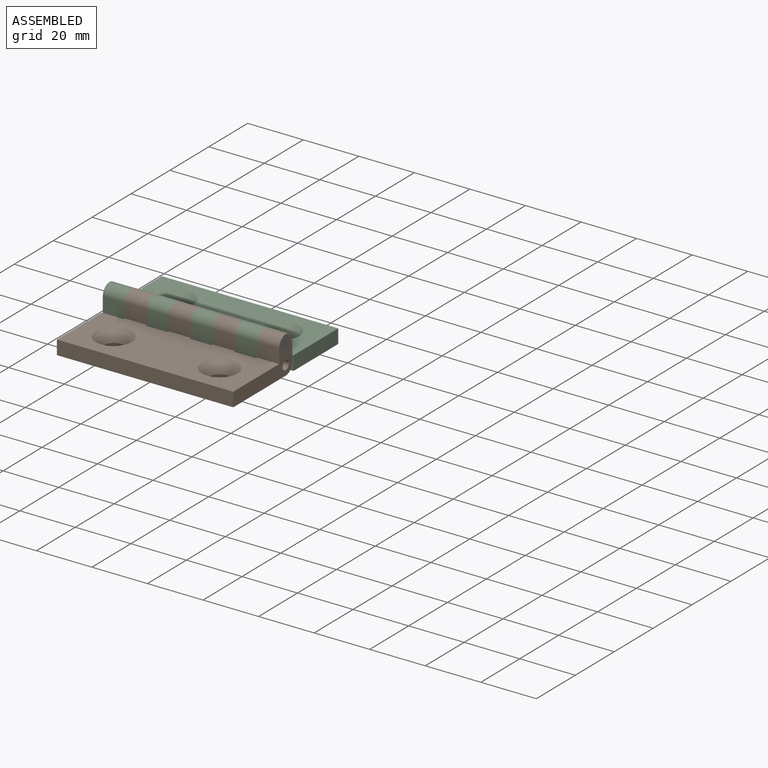
[diagram: assembled view]
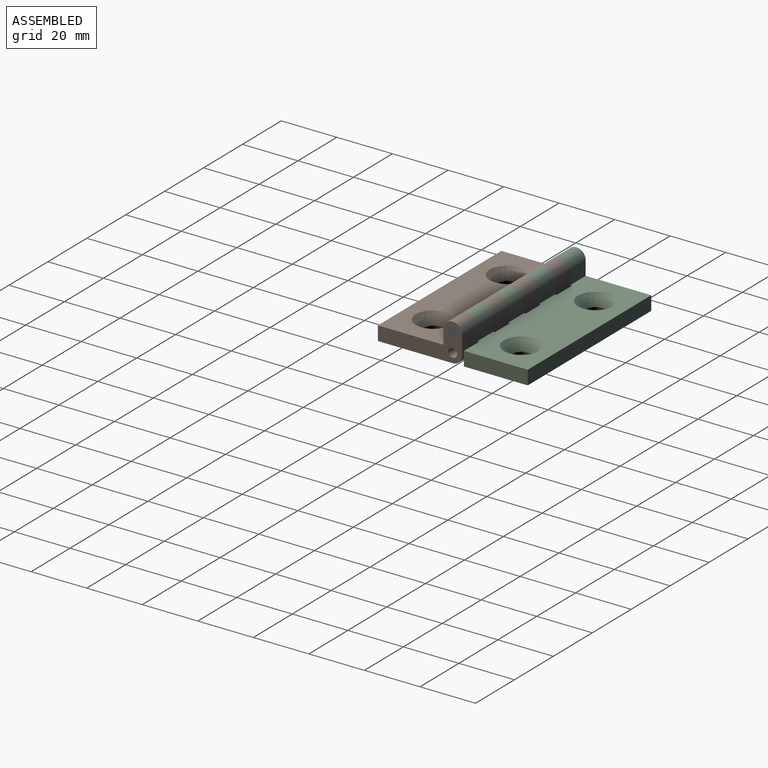
[diagram: assembled view, second angle]
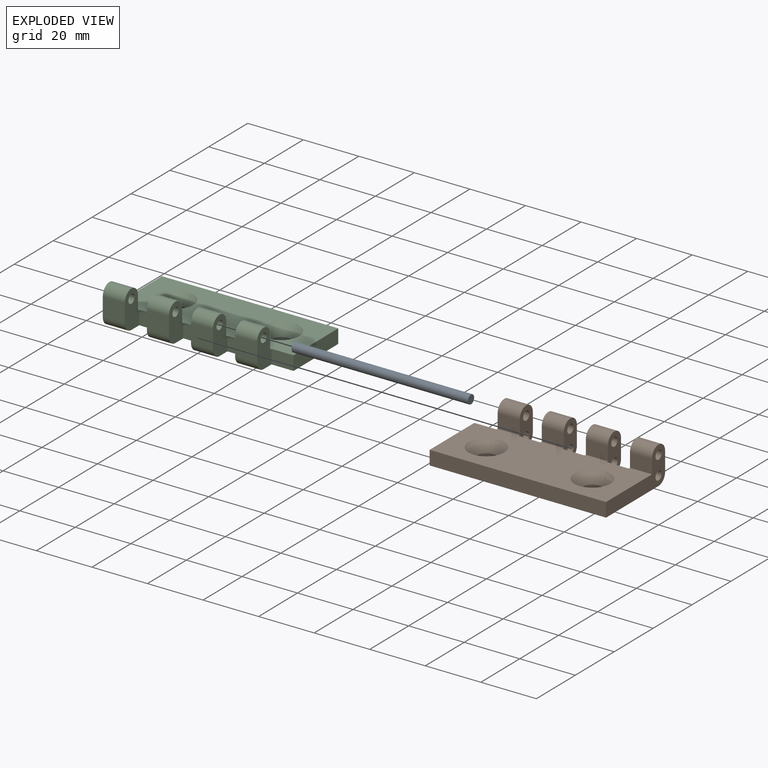
[diagram: exploded view]
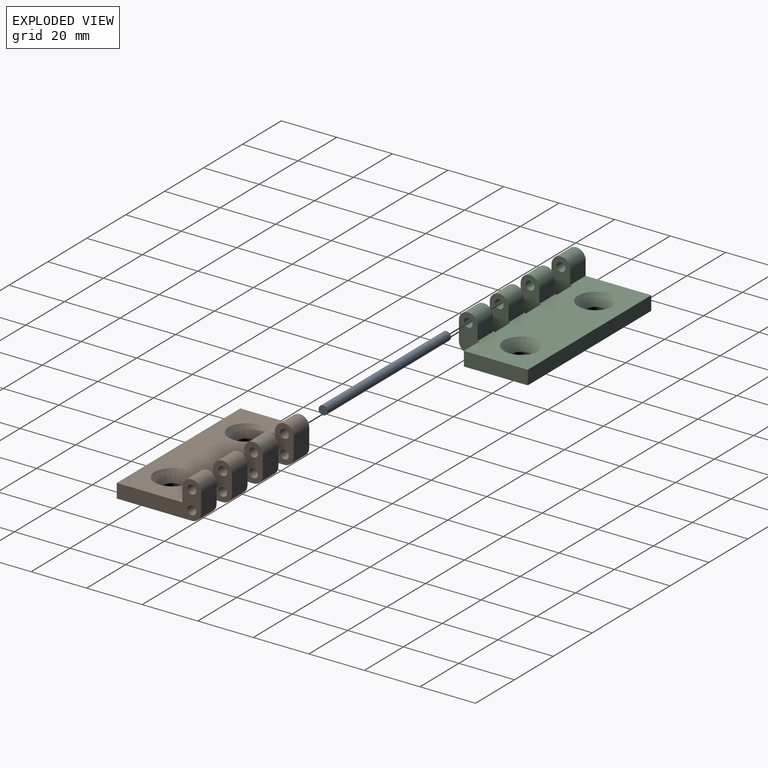
[diagram: exploded view, second angle]
ASSEMBLY  parts=3 mates=2
PART A: 3 faces, bbox 63.5x3.2x3.2 mm
  f0: cylinder r=1.59mm len=63.5mm, axis (-1,0,0), area 633.4mm2, adj f1,f2
  f1: plane 3.18x3.18mm, normal (1,0,0), area 7.9mm2, adj f0
  f2: plane 3.18x3.18mm, normal (-1,0,0), area 7.9mm2, adj f0
PART B: 44 faces, bbox 63.5x30.4x13.5 mm
  f0: cylinder r=3.37mm len=7.94mm, axis (-1,0,0), area 84.1mm2, adj f1,f3,f34,f36
  f1: plane 7.94x5.04mm, normal (0,-1,0), area 40mm2, adj f0,f22,f34,f36
  f2: cylinder r=3.37mm len=7.94mm, axis (-1,0,0), area 42.1mm2, adj f3,f24,f34,f36
  f3: plane 7.94x6.75mm, normal (0,1,0), area 53.6mm2, adj f0,f2,f34,f36
  f4: cylinder r=1.59mm len=7.94mm, axis (-1,0,0), area 79.2mm2, adj f34,f36
  f5: cylinder r=1.59mm len=7.94mm, axis (-1,0,0), area 79.2mm2, adj f34,f36
  f6: cylinder r=3.37mm len=7.94mm, axis (-1,0,0), area 84.1mm2, adj f7,f9,f31,f33
  f7: plane 7.94x5.04mm, normal (0,-1,0), area 40mm2, adj f6,f22,f31,f33
  f8: cylinder r=3.37mm len=7.94mm, axis (-1,0,0), area 42.1mm2, adj f9,f24,f31,f33
  f9: plane 7.94x6.75mm, normal (0,1,0), area 53.6mm2, adj f6,f8,f31,f33
  f10: cylinder r=1.59mm len=7.94mm, axis (-1,0,0), area 79.2mm2, adj f31,f33
  f11: cylinder r=1.59mm len=7.94mm, axis (-1,0,0), area 79.2mm2, adj f31,f33
  f12: cylinder r=3.37mm len=7.94mm, axis (-1,0,0), area 84.1mm2, adj f13,f15,f18,f30
  f13: plane 7.94x5.04mm, normal (0,-1,0), area 40mm2, adj f12,f18,f22,f30
  f14: cylinder r=3.37mm len=7.94mm, axis (-1,0,0), area 42.1mm2, adj f15,f18,f24,f30
  f15: plane 7.94x6.75mm, normal (0,1,0), area 53.6mm2, adj f12,f14,f18,f30
  f16: cylinder r=1.59mm len=7.94mm, axis (-1,0,0), area 79.2mm2, adj f18,f30
  f17: cylinder r=1.59mm len=7.94mm, axis (-1,0,0), area 79.2mm2, adj f18,f30
  f18: plane 30.36x13.49mm, normal (1,0,0), area 187.8mm2, adj f12,f13,f14,f15,f16,f17,f22,f23
  f19: plane 22.98x5.08mm, normal (-1,0,0), area 116.7mm2, adj f22,f23,f24,f38
  f20: cylinder r=3.37mm len=7.94mm, axis (-1,0,0), area 84.1mm2, adj f21,f26,f37,f39
  f21: plane 7.94x5.04mm, normal (0,-1,0), area 40mm2, adj f20,f22,f37,f39
  f22: plane 63.5x23.61mm, normal (0,0,1), area 1218.8mm2, adj f1,f7,f13,f18,f19,f21,f23,f29
  f23: plane 63.5x5.08mm, normal (0,-1,0), area 322.6mm2, adj f18,f19,f22,f24
  f24: plane 63.5x26.99mm, normal (0,0,-1), area 1514.7mm2, adj f2,f8,f14,f18,f19,f23,f25,f29
  f25: cylinder r=3.37mm len=7.94mm, axis (-1,0,0), area 42.1mm2, adj f24,f26,f37,f39
  f26: plane 7.94x6.75mm, normal (0,1,0), area 53.6mm2, adj f20,f25,f37,f39
  f27: cylinder r=1.59mm len=7.94mm, axis (-1,0,0), area 79.2mm2, adj f37,f39
  f28: cylinder r=1.59mm len=7.94mm, axis (-1,0,0), area 79.2mm2, adj f37,f39
  f29: plane 7.94x5.08mm, normal (0,1,0), area 40.3mm2, adj f22,f24,f30,f31
  f30: plane 13.49x7.38mm, normal (-1,0,0), area 71.1mm2, adj f12,f13,f14,f15,f16,f17,f22,f24
  f31: plane 13.49x7.38mm, normal (1,0,0), area 71.1mm2, adj f6,f7,f8,f9,f10,f11,f22,f24
  f32: plane 7.94x5.08mm, normal (0,1,0), area 40.3mm2, adj f22,f24,f33,f34
  f33: plane 13.49x7.38mm, normal (-1,0,0), area 71.1mm2, adj f6,f7,f8,f9,f10,f11,f22,f24
  f34: plane 13.49x7.38mm, normal (1,0,0), area 71.1mm2, adj f0,f1,f2,f3,f4,f5,f22,f24
  f35: plane 7.94x5.08mm, normal (0,1,0), area 40.3mm2, adj f22,f24,f36,f37
  f36: plane 13.49x7.38mm, normal (-1,0,0), area 71.1mm2, adj f0,f1,f2,f3,f4,f5,f22,f24
  f37: plane 13.49x7.38mm, normal (1,0,0), area 71.1mm2, adj f20,f21,f22,f24,f25,f26,f27,f28
  f38: plane 7.94x5.08mm, normal (0,1,0), area 40.3mm2, adj f19,f22,f24,f39
  f39: plane 13.49x7.38mm, normal (-1,0,0), area 71.1mm2, adj f20,f21,f22,f24,f25,f26,f27,f28
  f40: cone r=6.44mm half-angle=41deg, axis (0,0,1), area 143.9mm2, adj f22,f41
  f41: cylinder r=3.38mm len=6.76mm, axis (0,0,1), area 33.1mm2, adj f24,f40
  f42: cone r=6.44mm half-angle=41deg, axis (0,0,1), area 143.9mm2, adj f22,f43
  f43: cylinder r=3.38mm len=6.76mm, axis (0,0,1), area 33.1mm2, adj f24,f42
PART C: 40 faces, bbox 63.5x30.4x13.5 mm
  f0: plane 7.94x5.04mm, normal (0,1,0), area 40mm2, adj f1,f16,f18,f33
  f1: cylinder r=3.37mm len=7.94mm, axis (-1,0,0), area 84.1mm2, adj f0,f2,f16,f33
  f2: plane 7.94x6.75mm, normal (0,-1,0), area 53.6mm2, adj f1,f3,f16,f33
  f3: cylinder r=3.37mm len=7.94mm, axis (-1,0,0), area 42.1mm2, adj f2,f16,f23,f33
  f4: cylinder r=1.59mm len=7.94mm, axis (-1,0,0), area 79.2mm2, adj f16,f33
  f5: plane 7.94x5.04mm, normal (0,1,0), area 40mm2, adj f6,f18,f27,f29
  f6: cylinder r=3.37mm len=7.94mm, axis (-1,0,0), area 84.1mm2, adj f5,f7,f27,f29
  f7: plane 7.94x6.75mm, normal (0,-1,0), area 53.6mm2, adj f6,f8,f27,f29
  f8: cylinder r=3.37mm len=7.94mm, axis (-1,0,0), area 42.1mm2, adj f7,f23,f27,f29
  f9: cylinder r=1.59mm len=7.94mm, axis (-1,0,0), area 79.2mm2, adj f27,f29
  f10: plane 7.94x5.04mm, normal (0,1,0), area 40mm2, adj f11,f18,f26,f35
  f11: cylinder r=3.37mm len=7.94mm, axis (-1,0,0), area 84.1mm2, adj f10,f12,f26,f35
  f12: plane 7.94x6.75mm, normal (0,-1,0), area 53.6mm2, adj f11,f13,f26,f35
  f13: cylinder r=3.37mm len=7.94mm, axis (-1,0,0), area 42.1mm2, adj f12,f23,f26,f35
  f14: cylinder r=1.59mm len=7.94mm, axis (-1,0,0), area 79.2mm2, adj f26,f35
  f15: plane 22.98x5.08mm, normal (1,0,0), area 116.7mm2, adj f17,f18,f23,f31
  f16: plane 30.36x13.49mm, normal (-1,0,0), area 195.8mm2, adj f0,f1,f2,f3,f4,f17,f18,f23
  f17: plane 63.5x5.08mm, normal (0,1,0), area 322.6mm2, adj f15,f16,f18,f23
  f18: plane 63.5x23.61mm, normal (0,0,1), area 1218.8mm2, adj f0,f5,f10,f15,f16,f17,f19,f25
  f19: plane 7.94x5.04mm, normal (0,1,0), area 40mm2, adj f18,f20,f30,f32
  f20: cylinder r=3.37mm len=7.94mm, axis (-1,0,0), area 84.1mm2, adj f19,f21,f30,f32
  f21: plane 7.94x6.75mm, normal (0,-1,0), area 53.6mm2, adj f20,f22,f30,f32
  f22: cylinder r=3.37mm len=7.94mm, axis (-1,0,0), area 42.1mm2, adj f21,f23,f30,f32
  f23: plane 63.5x26.99mm, normal (0,0,-1), area 1514.7mm2, adj f3,f8,f13,f15,f16,f17,f22,f25
  f24: cylinder r=1.59mm len=7.94mm, axis (-1,0,0), area 79.2mm2, adj f30,f32
  f25: plane 7.94x5.08mm, normal (0,-1,0), area 40.3mm2, adj f18,f23,f26,f27
  f26: plane 13.49x7.38mm, normal (1,0,0), area 79mm2, adj f10,f11,f12,f13,f14,f18,f23,f25
  f27: plane 13.49x7.38mm, normal (-1,0,0), area 79mm2, adj f5,f6,f7,f8,f9,f18,f23,f25
  f28: plane 7.94x5.08mm, normal (0,-1,0), area 40.3mm2, adj f18,f23,f29,f30
  f29: plane 13.49x7.38mm, normal (1,0,0), area 79mm2, adj f5,f6,f7,f8,f9,f18,f23,f28
  f30: plane 13.49x7.38mm, normal (-1,0,0), area 79mm2, adj f18,f19,f20,f21,f22,f23,f24,f28
  f31: plane 7.94x5.08mm, normal (0,-1,0), area 40.3mm2, adj f15,f18,f23,f32
  f32: plane 13.49x7.38mm, normal (1,0,0), area 79mm2, adj f18,f19,f20,f21,f22,f23,f24,f31
  f33: plane 13.49x7.38mm, normal (1,0,0), area 79mm2, adj f0,f1,f2,f3,f4,f18,f23,f34
  f34: plane 7.94x5.08mm, normal (0,-1,0), area 40.3mm2, adj f18,f23,f33,f35
  f35: plane 13.49x7.38mm, normal (-1,0,0), area 79mm2, adj f10,f11,f12,f13,f14,f18,f23,f34
  f36: cone r=6.44mm half-angle=41deg, axis (0,0,1), area 143.9mm2, adj f18,f37
  f37: cylinder r=3.38mm len=6.76mm, axis (0,0,1), area 33.1mm2, adj f23,f36
  f38: cone r=6.44mm half-angle=41deg, axis (0,0,1), area 143.9mm2, adj f18,f39
  f39: cylinder r=3.38mm len=6.76mm, axis (0,0,1), area 33.1mm2, adj f23,f38
PLACE A at identity fixed
PLACE B at identity
PLACE C at identity
MATE revolute B.f0 <-> C.f1  axis (-1,0,0) through (-23.81,0,3.37)mm
MATE revolute A.f0 <-> C.f1  axis (-1,0,0) through (-31.75,0,3.37)mm
